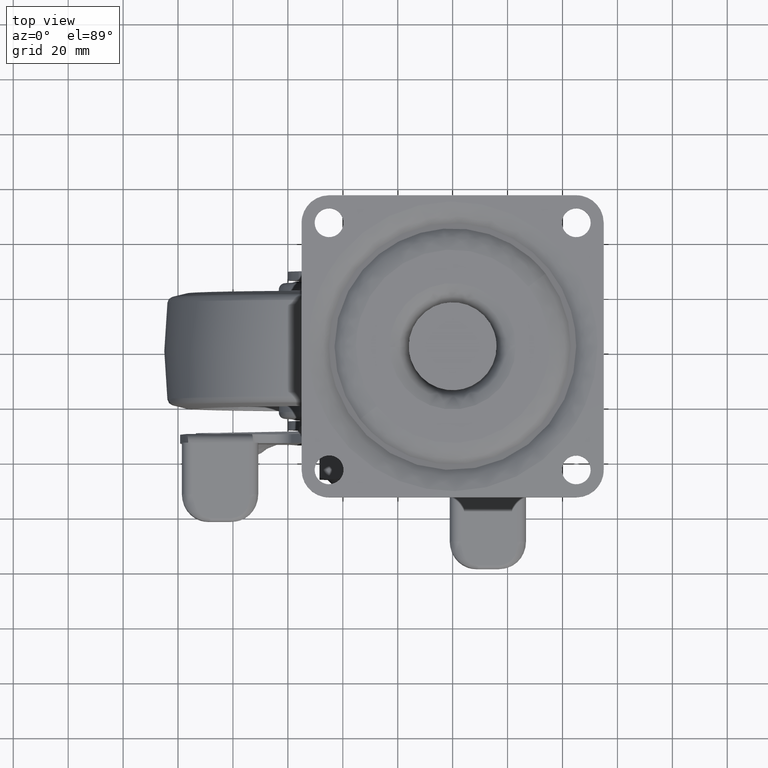
[diagram: clean part render]
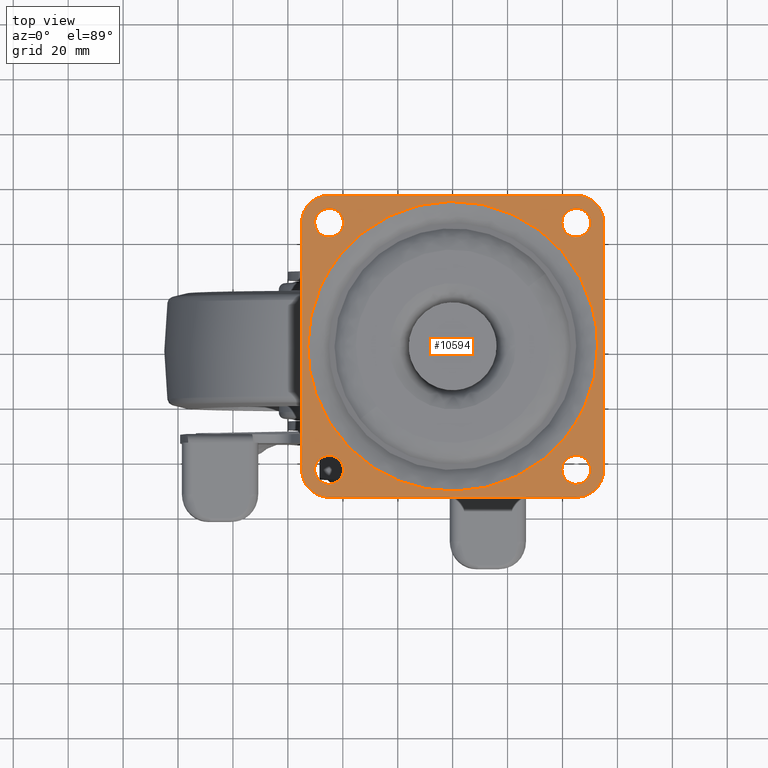
[diagram: same view with one face highlighted and labeled with its STEP entity id]
A machine part, top view. The second image highlights one B-rep face of the part: STEP entity #10594.
In plain terms, the highlighted face is a freeform B-spline surface patch.
Its self-contained STEP definition (entity closure, byte-faithful):
#9387=CARTESIAN_POINT('',(-45.320504832687227,39.759792308293100,2.081668E-016));
#9388=VERTEX_POINT('',#9387);
#9389=CARTESIAN_POINT('',(-39.750000000000000,45.0,0.0));
#9390=VERTEX_POINT('',#9389);
#9391=CARTESIAN_POINT('',(-45.320504832687206,39.759792308293108,0.0));
#9392=CARTESIAN_POINT('',(-45.160402007382380,39.750000000000000,0.0));
#9393=CARTESIAN_POINT('',(-45.0,39.750000000000000,0.0));
#9394=CARTESIAN_POINT('',(-39.750000000000000,39.750000000000000,0.0));
#9395=CARTESIAN_POINT('',(-39.750000000000000,45.0,0.0));
#9403=(BOUNDED_CURVE()B_SPLINE_CURVE(2,(#9391,#9392,#9393,#9394,#9395),.UNSPECIFIED.,.F.,.U.)B_SPLINE_CURVE_WITH_KNOTS((3,2,3),(0.239332962237713,0.250000000000000,0.500000000000000),.UNSPECIFIED.)CURVE()GEOMETRIC_REPRESENTATION_ITEM()RATIONAL_B_SPLINE_CURVE((0.976072041664082,0.987502787898397,1.0,0.707106781186547,1.0))REPRESENTATION_ITEM(''));
#9404=EDGE_CURVE('',#9388,#9390,#9403,.T.);
#9406=CARTESIAN_POINT('',(-44.679495167312773,50.240207691706892,2.081668E-016));
#9407=VERTEX_POINT('',#9406);
#9408=CARTESIAN_POINT('',(-39.750000000000000,45.0,0.0));
#9409=CARTESIAN_POINT('',(-39.750000000000007,49.938706851132871,0.0));
#9410=CARTESIAN_POINT('',(-44.679495167312758,50.240207691706885,0.0));
#9418=(BOUNDED_CURVE()B_SPLINE_CURVE(2,(#9408,#9409,#9410),.UNSPECIFIED.,.F.,.U.)B_SPLINE_CURVE_WITH_KNOTS((3,3),(0.500000000000000,0.739332962237713),.UNSPECIFIED.)CURVE()GEOMETRIC_REPRESENTATION_ITEM()RATIONAL_B_SPLINE_CURVE((1.0,0.719603993288151,0.976072041664082))REPRESENTATION_ITEM(''));
#9419=EDGE_CURVE('',#9390,#9407,#9418,.T.);
#9486=CARTESIAN_POINT('',(-50.249999999999993,45.0,0.0));
#9487=VERTEX_POINT('',#9486);
#9488=CARTESIAN_POINT('',(-50.249999999999993,45.0,0.0));
#9489=CARTESIAN_POINT('',(-50.250000000000000,40.061293148867115,0.0));
#9490=CARTESIAN_POINT('',(-45.320504832687227,39.759792308293086,0.0));
#9498=(BOUNDED_CURVE()B_SPLINE_CURVE(2,(#9488,#9489,#9490),.UNSPECIFIED.,.F.,.U.)B_SPLINE_CURVE_WITH_KNOTS((3,3),(0.0,0.239332962237713),.UNSPECIFIED.)CURVE()GEOMETRIC_REPRESENTATION_ITEM()RATIONAL_B_SPLINE_CURVE((1.0,0.719603993288151,0.976072041664082))REPRESENTATION_ITEM(''));
#9499=EDGE_CURVE('',#9487,#9388,#9498,.T.);
#9533=CARTESIAN_POINT('',(-44.679495167312780,50.240207691706885,0.0));
#9534=CARTESIAN_POINT('',(-44.839597992617620,50.250000000000000,0.0));
#9535=CARTESIAN_POINT('',(-45.0,50.249999999999993,0.0));
#9536=CARTESIAN_POINT('',(-50.249999999999986,50.249999999999986,0.0));
#9537=CARTESIAN_POINT('',(-50.249999999999993,45.0,0.0));
#9545=(BOUNDED_CURVE()B_SPLINE_CURVE(2,(#9533,#9534,#9535,#9536,#9537),.UNSPECIFIED.,.F.,.U.)B_SPLINE_CURVE_WITH_KNOTS((3,2,3),(0.739332962237713,0.750000000000000,1.0),.UNSPECIFIED.)CURVE()GEOMETRIC_REPRESENTATION_ITEM()RATIONAL_B_SPLINE_CURVE((0.976072041664082,0.987502787898397,1.0,0.707106781186547,1.0))REPRESENTATION_ITEM(''));
#9546=EDGE_CURVE('',#9407,#9487,#9545,.T.);
#9569=CARTESIAN_POINT('',(44.679495167312780,39.759792308293100,2.081668E-016));
#9570=VERTEX_POINT('',#9569);
#9571=CARTESIAN_POINT('',(50.249999999999993,45.0,0.0));
#9572=VERTEX_POINT('',#9571);
#9573=CARTESIAN_POINT('',(44.679495167312780,39.759792308293108,0.0));
#9574=CARTESIAN_POINT('',(44.839597992617612,39.750000000000000,0.0));
#9575=CARTESIAN_POINT('',(45.0,39.750000000000000,0.0));
#9576=CARTESIAN_POINT('',(50.249999999999986,39.750000000000000,0.0));
#9577=CARTESIAN_POINT('',(50.249999999999993,45.0,0.0));
#9585=(BOUNDED_CURVE()B_SPLINE_CURVE(2,(#9573,#9574,#9575,#9576,#9577),.UNSPECIFIED.,.F.,.U.)B_SPLINE_CURVE_WITH_KNOTS((3,2,3),(0.239332962237713,0.250000000000000,0.500000000000000),.UNSPECIFIED.)CURVE()GEOMETRIC_REPRESENTATION_ITEM()RATIONAL_B_SPLINE_CURVE((0.976072041664082,0.987502787898397,1.0,0.707106781186547,1.0))REPRESENTATION_ITEM(''));
#9586=EDGE_CURVE('',#9570,#9572,#9585,.T.);
#9588=CARTESIAN_POINT('',(45.320504832687220,50.240207691706892,2.081668E-016));
#9589=VERTEX_POINT('',#9588);
#9590=CARTESIAN_POINT('',(50.249999999999993,45.0,0.0));
#9591=CARTESIAN_POINT('',(50.249999999999993,49.938706851132856,0.0));
#9592=CARTESIAN_POINT('',(45.320504832687234,50.240207691706892,0.0));
#9600=(BOUNDED_CURVE()B_SPLINE_CURVE(2,(#9590,#9591,#9592),.UNSPECIFIED.,.F.,.U.)B_SPLINE_CURVE_WITH_KNOTS((3,3),(0.500000000000000,0.739332962237713),.UNSPECIFIED.)CURVE()GEOMETRIC_REPRESENTATION_ITEM()RATIONAL_B_SPLINE_CURVE((1.0,0.719603993288151,0.976072041664083))REPRESENTATION_ITEM(''));
#9601=EDGE_CURVE('',#9572,#9589,#9600,.T.);
#9668=CARTESIAN_POINT('',(39.750000000000000,45.0,0.0));
#9669=VERTEX_POINT('',#9668);
#9670=CARTESIAN_POINT('',(39.750000000000000,45.0,0.0));
#9671=CARTESIAN_POINT('',(39.750000000000000,40.061293148867115,0.0));
#9672=CARTESIAN_POINT('',(44.679495167312787,39.759792308293108,0.0));
#9680=(BOUNDED_CURVE()B_SPLINE_CURVE(2,(#9670,#9671,#9672),.UNSPECIFIED.,.F.,.U.)B_SPLINE_CURVE_WITH_KNOTS((3,3),(0.0,0.239332962237714),.UNSPECIFIED.)CURVE()GEOMETRIC_REPRESENTATION_ITEM()RATIONAL_B_SPLINE_CURVE((1.0,0.719603993288151,0.976072041664083))REPRESENTATION_ITEM(''));
#9681=EDGE_CURVE('',#9669,#9570,#9680,.T.);
#9715=CARTESIAN_POINT('',(45.320504832687234,50.240207691706892,0.0));
#9716=CARTESIAN_POINT('',(45.160402007382388,50.250000000000000,0.0));
#9717=CARTESIAN_POINT('',(45.0,50.249999999999993,0.0));
#9718=CARTESIAN_POINT('',(39.750000000000000,50.249999999999986,0.0));
#9719=CARTESIAN_POINT('',(39.750000000000000,45.0,0.0));
#9727=(BOUNDED_CURVE()B_SPLINE_CURVE(2,(#9715,#9716,#9717,#9718,#9719),.UNSPECIFIED.,.F.,.U.)B_SPLINE_CURVE_WITH_KNOTS((3,2,3),(0.739332962237713,0.750000000000000,1.0),.UNSPECIFIED.)CURVE()GEOMETRIC_REPRESENTATION_ITEM()RATIONAL_B_SPLINE_CURVE((0.976072041664083,0.987502787898397,1.0,0.707106781186547,1.0))REPRESENTATION_ITEM(''));
#9728=EDGE_CURVE('',#9589,#9669,#9727,.T.);
#9751=CARTESIAN_POINT('',(-45.320504832687220,-50.240207691706892,2.081668E-016));
#9752=VERTEX_POINT('',#9751);
#9753=CARTESIAN_POINT('',(-39.750000000000000,-45.0,0.0));
#9754=VERTEX_POINT('',#9753);
#9755=CARTESIAN_POINT('',(-45.320504832687220,-50.240207691706892,0.0));
#9756=CARTESIAN_POINT('',(-45.160402007382380,-50.249999999999993,0.0));
#9757=CARTESIAN_POINT('',(-45.0,-50.249999999999993,0.0));
#9758=CARTESIAN_POINT('',(-39.750000000000000,-50.249999999999986,0.0));
#9759=CARTESIAN_POINT('',(-39.750000000000000,-45.0,0.0));
#9767=(BOUNDED_CURVE()B_SPLINE_CURVE(2,(#9755,#9756,#9757,#9758,#9759),.UNSPECIFIED.,.F.,.U.)B_SPLINE_CURVE_WITH_KNOTS((3,2,3),(0.239332962237714,0.250000000000000,0.500000000000000),.UNSPECIFIED.)CURVE()GEOMETRIC_REPRESENTATION_ITEM()RATIONAL_B_SPLINE_CURVE((0.976072041664083,0.987502787898397,1.0,0.707106781186547,1.0))REPRESENTATION_ITEM(''));
#9768=EDGE_CURVE('',#9752,#9754,#9767,.T.);
#9770=CARTESIAN_POINT('',(-44.679495167312773,-39.759792308293100,2.081668E-016));
#9771=VERTEX_POINT('',#9770);
#9772=CARTESIAN_POINT('',(-39.750000000000000,-45.0,0.0));
#9773=CARTESIAN_POINT('',(-39.750000000000007,-40.061293148867122,0.0));
#9774=CARTESIAN_POINT('',(-44.679495167312758,-39.759792308293093,0.0));
#9782=(BOUNDED_CURVE()B_SPLINE_CURVE(2,(#9772,#9773,#9774),.UNSPECIFIED.,.F.,.U.)B_SPLINE_CURVE_WITH_KNOTS((3,3),(0.500000000000000,0.739332962237713),.UNSPECIFIED.)CURVE()GEOMETRIC_REPRESENTATION_ITEM()RATIONAL_B_SPLINE_CURVE((1.0,0.719603993288151,0.976072041664082))REPRESENTATION_ITEM(''));
#9783=EDGE_CURVE('',#9754,#9771,#9782,.T.);
#9850=CARTESIAN_POINT('',(-50.249999999999993,-45.0,0.0));
#9851=VERTEX_POINT('',#9850);
#9852=CARTESIAN_POINT('',(-50.249999999999993,-45.0,0.0));
#9853=CARTESIAN_POINT('',(-50.249999999999986,-49.938706851132864,0.0));
#9854=CARTESIAN_POINT('',(-45.320504832687220,-50.240207691706892,0.0));
#9862=(BOUNDED_CURVE()B_SPLINE_CURVE(2,(#9852,#9853,#9854),.UNSPECIFIED.,.F.,.U.)B_SPLINE_CURVE_WITH_KNOTS((3,3),(0.0,0.239332962237713),.UNSPECIFIED.)CURVE()GEOMETRIC_REPRESENTATION_ITEM()RATIONAL_B_SPLINE_CURVE((1.0,0.719603993288151,0.976072041664082))REPRESENTATION_ITEM(''));
#9863=EDGE_CURVE('',#9851,#9752,#9862,.T.);
#9897=CARTESIAN_POINT('',(-44.679495167312780,-39.759792308293108,0.0));
#9898=CARTESIAN_POINT('',(-44.839597992617620,-39.750000000000000,0.0));
#9899=CARTESIAN_POINT('',(-45.0,-39.750000000000000,0.0));
#9900=CARTESIAN_POINT('',(-50.249999999999986,-39.750000000000000,0.0));
#9901=CARTESIAN_POINT('',(-50.249999999999993,-45.0,0.0));
#9909=(BOUNDED_CURVE()B_SPLINE_CURVE(2,(#9897,#9898,#9899,#9900,#9901),.UNSPECIFIED.,.F.,.U.)B_SPLINE_CURVE_WITH_KNOTS((3,2,3),(0.739332962237713,0.750000000000000,1.0),.UNSPECIFIED.)CURVE()GEOMETRIC_REPRESENTATION_ITEM()RATIONAL_B_SPLINE_CURVE((0.976072041664082,0.987502787898397,1.0,0.707106781186547,1.0))REPRESENTATION_ITEM(''));
#9910=EDGE_CURVE('',#9771,#9851,#9909,.T.);
#9933=CARTESIAN_POINT('',(44.679495167312780,-50.240207691706892,2.081668E-016));
#9934=VERTEX_POINT('',#9933);
#9935=CARTESIAN_POINT('',(50.249999999999993,-45.0,0.0));
#9936=VERTEX_POINT('',#9935);
#9937=CARTESIAN_POINT('',(44.679495167312780,-50.240207691706878,0.0));
#9938=CARTESIAN_POINT('',(44.839597992617627,-50.249999999999986,0.0));
#9939=CARTESIAN_POINT('',(45.0,-50.249999999999993,0.0));
#9940=CARTESIAN_POINT('',(50.249999999999986,-50.249999999999986,0.0));
#9941=CARTESIAN_POINT('',(50.249999999999993,-45.0,0.0));
#9949=(BOUNDED_CURVE()B_SPLINE_CURVE(2,(#9937,#9938,#9939,#9940,#9941),.UNSPECIFIED.,.F.,.U.)B_SPLINE_CURVE_WITH_KNOTS((3,2,3),(0.239332962237714,0.250000000000000,0.500000000000000),.UNSPECIFIED.)CURVE()GEOMETRIC_REPRESENTATION_ITEM()RATIONAL_B_SPLINE_CURVE((0.976072041664083,0.987502787898397,1.0,0.707106781186547,1.0))REPRESENTATION_ITEM(''));
#9950=EDGE_CURVE('',#9934,#9936,#9949,.T.);
#9952=CARTESIAN_POINT('',(45.320504832687220,-39.759792308293100,2.081668E-016));
#9953=VERTEX_POINT('',#9952);
#9954=CARTESIAN_POINT('',(50.249999999999993,-45.0,0.0));
#9955=CARTESIAN_POINT('',(50.249999999999993,-40.061293148867108,0.0));
#9956=CARTESIAN_POINT('',(45.320504832687234,-39.759792308293108,0.0));
#9964=(BOUNDED_CURVE()B_SPLINE_CURVE(2,(#9954,#9955,#9956),.UNSPECIFIED.,.F.,.U.)B_SPLINE_CURVE_WITH_KNOTS((3,3),(0.500000000000000,0.739332962237713),.UNSPECIFIED.)CURVE()GEOMETRIC_REPRESENTATION_ITEM()RATIONAL_B_SPLINE_CURVE((1.0,0.719603993288151,0.976072041664083))REPRESENTATION_ITEM(''));
#9965=EDGE_CURVE('',#9936,#9953,#9964,.T.);
#10032=CARTESIAN_POINT('',(39.750000000000000,-45.0,0.0));
#10033=VERTEX_POINT('',#10032);
#10034=CARTESIAN_POINT('',(39.750000000000000,-45.0,0.0));
#10035=CARTESIAN_POINT('',(39.749999999999993,-49.938706851132878,0.0));
#10036=CARTESIAN_POINT('',(44.679495167312787,-50.240207691706892,0.0));
#10044=(BOUNDED_CURVE()B_SPLINE_CURVE(2,(#10034,#10035,#10036),.UNSPECIFIED.,.F.,.U.)B_SPLINE_CURVE_WITH_KNOTS((3,3),(0.0,0.239332962237714),.UNSPECIFIED.)CURVE()GEOMETRIC_REPRESENTATION_ITEM()RATIONAL_B_SPLINE_CURVE((1.0,0.719603993288150,0.976072041664083))REPRESENTATION_ITEM(''));
#10045=EDGE_CURVE('',#10033,#9934,#10044,.T.);
#10079=CARTESIAN_POINT('',(45.320504832687220,-39.759792308293100,0.0));
#10080=CARTESIAN_POINT('',(45.160402007382380,-39.749999999999993,0.0));
#10081=CARTESIAN_POINT('',(45.0,-39.750000000000000,0.0));
#10082=CARTESIAN_POINT('',(39.750000000000000,-39.750000000000000,0.0));
#10083=CARTESIAN_POINT('',(39.750000000000000,-45.0,0.0));
#10091=(BOUNDED_CURVE()B_SPLINE_CURVE(2,(#10079,#10080,#10081,#10082,#10083),.UNSPECIFIED.,.F.,.U.)B_SPLINE_CURVE_WITH_KNOTS((3,2,3),(0.739332962237714,0.750000000000000,1.0),.UNSPECIFIED.)CURVE()GEOMETRIC_REPRESENTATION_ITEM()RATIONAL_B_SPLINE_CURVE((0.976072041664083,0.987502787898397,1.0,0.707106781186547,1.0))REPRESENTATION_ITEM(''));
#10092=EDGE_CURVE('',#9953,#10033,#10091,.T.);
#10228=CARTESIAN_POINT('',(55.0,-45.0,0.0));
#10229=VERTEX_POINT('',#10228);
#10230=CARTESIAN_POINT('',(55.0,45.0,0.0));
#10231=VERTEX_POINT('',#10230);
#10232=CARTESIAN_POINT('',(55.0,-45.0,0.0));
#10233=CARTESIAN_POINT('',(55.0,45.0,0.0));
#10234=QUASI_UNIFORM_CURVE('',1,(#10232,#10233),.UNSPECIFIED.,.F.,.U.);
#10235=EDGE_CURVE('',#10229,#10231,#10234,.T.);
#10265=CARTESIAN_POINT('',(45.0,-55.0,0.0));
#10266=VERTEX_POINT('',#10265);
#10267=CARTESIAN_POINT('',(45.0,-55.0,0.0));
#10268=CARTESIAN_POINT('',(55.000000000000007,-55.000000000000007,0.0));
#10269=CARTESIAN_POINT('',(55.0,-45.0,0.0));
#10277=(BOUNDED_CURVE()B_SPLINE_CURVE(2,(#10267,#10268,#10269),.UNSPECIFIED.,.F.,.U.)CURVE()GEOMETRIC_REPRESENTATION_ITEM()QUASI_UNIFORM_CURVE()RATIONAL_B_SPLINE_CURVE((1.0,0.707106781186548,1.0))REPRESENTATION_ITEM(''));
#10278=EDGE_CURVE('',#10266,#10229,#10277,.T.);
#10295=CARTESIAN_POINT('',(-45.0,-55.0,0.0));
#10296=VERTEX_POINT('',#10295);
#10297=CARTESIAN_POINT('',(-45.0,-55.0,0.0));
#10298=CARTESIAN_POINT('',(45.0,-55.0,0.0));
#10299=QUASI_UNIFORM_CURVE('',1,(#10297,#10298),.UNSPECIFIED.,.F.,.U.);
#10300=EDGE_CURVE('',#10296,#10266,#10299,.T.);
#10326=CARTESIAN_POINT('',(-55.0,-45.0,0.0));
#10327=VERTEX_POINT('',#10326);
#10328=CARTESIAN_POINT('',(-55.0,-45.0,0.0));
#10329=CARTESIAN_POINT('',(-55.000000000000007,-55.000000000000007,0.0));
#10330=CARTESIAN_POINT('',(-45.0,-55.0,0.0));
#10338=(BOUNDED_CURVE()B_SPLINE_CURVE(2,(#10328,#10329,#10330),.UNSPECIFIED.,.F.,.U.)CURVE()GEOMETRIC_REPRESENTATION_ITEM()QUASI_UNIFORM_CURVE()RATIONAL_B_SPLINE_CURVE((1.0,0.707106781186548,1.0))REPRESENTATION_ITEM(''));
#10339=EDGE_CURVE('',#10327,#10296,#10338,.T.);
#10356=CARTESIAN_POINT('',(-55.0,45.0,0.0));
#10357=VERTEX_POINT('',#10356);
#10358=CARTESIAN_POINT('',(-55.0,45.0,0.0));
#10359=CARTESIAN_POINT('',(-55.0,-45.0,0.0));
#10360=QUASI_UNIFORM_CURVE('',1,(#10358,#10359),.UNSPECIFIED.,.F.,.U.);
#10361=EDGE_CURVE('',#10357,#10327,#10360,.T.);
#10387=CARTESIAN_POINT('',(-45.0,55.0,0.0));
#10388=VERTEX_POINT('',#10387);
#10389=CARTESIAN_POINT('',(-45.0,55.0,0.0));
#10390=CARTESIAN_POINT('',(-55.000000000000007,55.000000000000007,0.0));
#10391=CARTESIAN_POINT('',(-55.0,45.0,0.0));
#10399=(BOUNDED_CURVE()B_SPLINE_CURVE(2,(#10389,#10390,#10391),.UNSPECIFIED.,.F.,.U.)CURVE()GEOMETRIC_REPRESENTATION_ITEM()QUASI_UNIFORM_CURVE()RATIONAL_B_SPLINE_CURVE((1.0,0.707106781186548,1.0))REPRESENTATION_ITEM(''));
#10400=EDGE_CURVE('',#10388,#10357,#10399,.T.);
#10417=CARTESIAN_POINT('',(45.0,55.0,0.0));
#10418=VERTEX_POINT('',#10417);
#10419=CARTESIAN_POINT('',(45.0,55.0,0.0));
#10420=CARTESIAN_POINT('',(-45.0,55.0,0.0));
#10421=QUASI_UNIFORM_CURVE('',1,(#10419,#10420),.UNSPECIFIED.,.F.,.U.);
#10422=EDGE_CURVE('',#10418,#10388,#10421,.T.);
#10448=CARTESIAN_POINT('',(55.0,45.0,0.0));
#10449=CARTESIAN_POINT('',(55.000000000000007,55.000000000000007,0.0));
#10450=CARTESIAN_POINT('',(45.0,55.0,0.0));
#10458=(BOUNDED_CURVE()B_SPLINE_CURVE(2,(#10448,#10449,#10450),.UNSPECIFIED.,.F.,.U.)CURVE()GEOMETRIC_REPRESENTATION_ITEM()QUASI_UNIFORM_CURVE()RATIONAL_B_SPLINE_CURVE((1.0,0.707106781186548,1.0))REPRESENTATION_ITEM(''));
#10459=EDGE_CURVE('',#10231,#10418,#10458,.T.);
#10467=CARTESIAN_POINT('',(-60.494499786798663,60.494499786798663,0.0));
#10468=CARTESIAN_POINT('',(60.494502737228572,60.494499786798663,0.0));
#10469=CARTESIAN_POINT('',(-60.494499786798663,-60.494502737228572,0.0));
#10470=CARTESIAN_POINT('',(60.494502737228572,-60.494502737228572,0.0));
#10471=B_SPLINE_SURFACE_WITH_KNOTS('',1,1,((#10467,#10469),(#10468,#10470)),.UNSPECIFIED.,.F.,.F.,.U.,(2,2),(2,2),(0.0,120.989002524027200),(0.0,120.989002524027200),.UNSPECIFIED.);
#10472=ORIENTED_EDGE('',*,*,#10459,.T.);
#10473=ORIENTED_EDGE('',*,*,#10422,.T.);
#10474=ORIENTED_EDGE('',*,*,#10400,.T.);
#10475=ORIENTED_EDGE('',*,*,#10361,.T.);
#10476=ORIENTED_EDGE('',*,*,#10339,.T.);
#10477=ORIENTED_EDGE('',*,*,#10300,.T.);
#10478=ORIENTED_EDGE('',*,*,#10278,.T.);
#10479=ORIENTED_EDGE('',*,*,#10235,.T.);
#10480=EDGE_LOOP('',(#10472,#10473,#10474,#10475,#10476,#10477,#10478,#10479));
#10481=FACE_OUTER_BOUND('',#10480,.T.);
#10482=CARTESIAN_POINT('',(-52.765951326141597,0.0,0.0));
#10483=VERTEX_POINT('',#10482);
#10484=CARTESIAN_POINT('',(-41.076308764218211,33.120733297257402,-2.215371E-012));
#10485=VERTEX_POINT('',#10484);
#10486=CARTESIAN_POINT('',(-52.765951326141597,0.0,0.0));
#10487=CARTESIAN_POINT('',(-52.765953157330664,18.623241280758467,-1.107686E-012));
#10488=CARTESIAN_POINT('',(-41.076308764218211,33.120733297257402,-2.215371E-012));
#10496=(BOUNDED_CURVE()B_SPLINE_CURVE(2,(#10486,#10487,#10488),.UNSPECIFIED.,.F.,.U.)B_SPLINE_CURVE_WITH_KNOTS((3,3),(0.0,0.108867642835371),.UNSPECIFIED.)CURVE()GEOMETRIC_REPRESENTATION_ITEM()RATIONAL_B_SPLINE_CURVE((1.0,0.872453622661260,0.855992632946995))REPRESENTATION_ITEM(''));
#10497=EDGE_CURVE('',#10483,#10485,#10496,.T.);
#10498=ORIENTED_EDGE('',*,*,#10497,.T.);
#10499=CARTESIAN_POINT('',(52.765951326141597,0.0,0.0));
#10500=VERTEX_POINT('',#10499);
#10501=CARTESIAN_POINT('',(-41.076308764218211,33.120733297257402,-2.215371E-012));
#10502=CARTESIAN_POINT('',(-39.854806380678042,34.635686296616768,-2.200953E-012));
#10503=CARTESIAN_POINT('',(-36.960164387595519,37.844889394415873,-2.163965E-012));
#10504=CARTESIAN_POINT('',(-31.385529091637590,42.677796694443302,-2.082747E-012));
#10505=CARTESIAN_POINT('',(-24.550904559300658,46.965552448757187,-1.971040E-012));
#10506=CARTESIAN_POINT('',(-17.749325756447430,49.833975197426533,-1.849511E-012));
#10507=CARTESIAN_POINT('',(-11.800326468800140,51.521750782340703,-1.737132E-012));
#10508=CARTESIAN_POINT('',(-6.043732796508593,52.542229528020897,-1.623848E-012));
#10509=CARTESIAN_POINT('',(0.812818566070118,52.937574711432930,-1.482841E-012));
#10510=CARTESIAN_POINT('',(7.408498425014450,52.380017287949528,-1.340251E-012));
#10511=CARTESIAN_POINT('',(14.371410388262090,50.917719890170162,-1.183248E-012));
#10512=CARTESIAN_POINT('',(20.790737534488208,48.704159756504872,-1.032090E-012));
#10513=CARTESIAN_POINT('',(26.887325780959252,45.539294236341632,-8.806595E-013));
#10514=CARTESIAN_POINT('',(32.502406354033631,41.745142633285177,-7.346741E-013));
#10515=CARTESIAN_POINT('',(37.162532795471442,37.663428231627023,-6.066050E-013));
#10516=CARTESIAN_POINT('',(41.595683128888027,32.649291625390092,-4.763923E-013));
#10517=CARTESIAN_POINT('',(44.610817027853528,28.343908982610930,-3.811984E-013));
#10518=CARTESIAN_POINT('',(47.350098115988281,23.473356090239459,-2.876079E-013));
#10519=CARTESIAN_POINT('',(49.200253157651893,19.286647234779590,-2.177490E-013));
#10520=CARTESIAN_POINT('',(51.077494772209612,13.665646832319000,-1.366947E-013));
#10521=CARTESIAN_POINT('',(52.411272459819607,7.530334648172240,-6.323841E-014));
#10522=CARTESIAN_POINT('',(52.766039492797127,2.453693296909075,-1.817776E-014));
#10523=CARTESIAN_POINT('',(52.765951326141597,0.0,0.0));
#10524=B_SPLINE_CURVE_WITH_KNOTS('',3,(#10501,#10502,#10503,#10504,#10505,#10506,#10507,#10508,#10509,#10510,#10511,#10512,#10513,#10514,#10515,#10516,#10517,#10518,#10519,#10520,#10521,#10522,#10523),.UNSPECIFIED.,.F.,.U.,(4,1,1,1,1,1,1,1,1,1,1,1,1,1,1,1,1,1,1,1,4),(0.000000190578248,5.838189182734837,12.945575586546950,22.083589315223179,29.952470425085959,35.029158527358561,40.613485698377723,47.466988938706379,55.589576465084761,60.412444235650128,68.789051460695845,75.896388122518857,80.973111309151435,89.095818745975834,94.426352349204876,101.026028258143400,104.833600326480610,111.179476188624510,114.733156889100400,122.602042878433810,129.963124877159000),.UNSPECIFIED.);
#10525=EDGE_CURVE('',#10485,#10500,#10524,.T.);
#10526=ORIENTED_EDGE('',*,*,#10525,.T.);
#10527=CARTESIAN_POINT('',(41.076308764218219,-33.120733297257402,-2.215371E-012));
#10528=VERTEX_POINT('',#10527);
#10529=CARTESIAN_POINT('',(52.765951326141597,0.0,0.0));
#10530=CARTESIAN_POINT('',(52.765953157330664,-18.623241280758467,-1.107686E-012));
#10531=CARTESIAN_POINT('',(41.076308764218211,-33.120733297257409,-2.215371E-012));
#10539=(BOUNDED_CURVE()B_SPLINE_CURVE(2,(#10529,#10530,#10531),.UNSPECIFIED.,.F.,.U.)B_SPLINE_CURVE_WITH_KNOTS((3,3),(0.500000000000000,0.608867642835371),.UNSPECIFIED.)CURVE()GEOMETRIC_REPRESENTATION_ITEM()RATIONAL_B_SPLINE_CURVE((1.0,0.872453622661260,0.855992632946995))REPRESENTATION_ITEM(''));
#10540=EDGE_CURVE('',#10500,#10528,#10539,.T.);
#10541=ORIENTED_EDGE('',*,*,#10540,.T.);
#10542=CARTESIAN_POINT('',(41.076308764218219,-33.120733297257402,-2.215371E-012));
#10543=CARTESIAN_POINT('',(39.005297139517957,-35.689796420024031,-2.190930E-012));
#10544=CARTESIAN_POINT('',(35.268587575388302,-39.524094695857102,-2.140896E-012));
#10545=CARTESIAN_POINT('',(28.640825105575420,-44.529971478800540,-2.038852E-012));
#10546=CARTESIAN_POINT('',(22.547161626240420,-47.898453554334793,-1.935889E-012));
#10547=CARTESIAN_POINT('',(16.532001800374839,-50.199801087687362,-1.826667E-012));
#10548=CARTESIAN_POINT('',(11.058526724449671,-51.696067344258147,-1.722851E-012));
#10549=CARTESIAN_POINT('',(4.949930597583372,-52.688280248515753,-1.601968E-012));
#10550=CARTESIAN_POINT('',(-1.154336081751453,-52.863557229079490,-1.475124E-012));
#10551=CARTESIAN_POINT('',(-7.062134260540723,-52.378434110266262,-1.347510E-012));
#10552=CARTESIAN_POINT('',(-12.064627090859160,-51.465309543544592,-1.235730E-012));
#10553=CARTESIAN_POINT('',(-18.488063338209969,-49.590831016672702,-1.086999E-012));
#10554=CARTESIAN_POINT('',(-24.391462219733299,-46.980948893746131,-9.437351E-013));
#10555=CARTESIAN_POINT('',(-30.589983752786200,-43.151675889816083,-7.852416E-013));
#10556=CARTESIAN_POINT('',(-35.097724343069594,-39.553757028402757,-6.639559E-013));
#10557=CARTESIAN_POINT('',(-39.403954262772857,-35.236459160754272,-5.415705E-013));
#10558=CARTESIAN_POINT('',(-42.657996408375091,-31.218176610652250,-4.434885E-013));
#10559=CARTESIAN_POINT('',(-45.662203106326587,-26.605284559359980,-3.462456E-013));
#10560=CARTESIAN_POINT('',(-48.249841468280401,-21.647796506431739,-2.551944E-013));
#10561=CARTESIAN_POINT('',(-50.492720146587480,-15.788940517769110,-1.647022E-013));
#10562=CARTESIAN_POINT('',(-52.290068061646757,-8.460997705980848,-7.267815E-014));
#10563=CARTESIAN_POINT('',(-52.766278342034937,-3.130637654234845,-2.318828E-014));
#10564=CARTESIAN_POINT('',(-52.765951326141597,0.0,0.0));
#10565=B_SPLINE_CURVE_WITH_KNOTS('',3,(#10542,#10543,#10544,#10545,#10546,#10547,#10548,#10549,#10550,#10551,#10552,#10553,#10554,#10555,#10556,#10557,#10558,#10559,#10560,#10561,#10562,#10563,#10564),.UNSPECIFIED.,.F.,.U.,(4,1,1,1,1,1,1,1,1,1,1,1,1,1,1,1,1,1,1,1,4),(0.000000190560655,9.899542198991540,15.991562866545200,24.875763769863720,30.713985321284039,35.283032649909117,41.882761192845827,49.243693513975103,53.558907749809279,59.650934717040499,64.473803755579269,73.611910829779731,78.942441468123008,86.303638320726705,90.872660186406705,97.218544380878853,101.787549587656500,107.371920283814010,113.971649423808500,120.571278928486090,129.963124877159000),.UNSPECIFIED.);
#10566=EDGE_CURVE('',#10528,#10483,#10565,.T.);
#10567=ORIENTED_EDGE('',*,*,#10566,.T.);
#10568=EDGE_LOOP('',(#10498,#10526,#10541,#10567));
#10569=FACE_BOUND('',#10568,.T.);
#10570=ORIENTED_EDGE('',*,*,#9965,.F.);
#10571=ORIENTED_EDGE('',*,*,#9950,.F.);
#10572=ORIENTED_EDGE('',*,*,#10045,.F.);
#10573=ORIENTED_EDGE('',*,*,#10092,.F.);
#10574=EDGE_LOOP('',(#10570,#10571,#10572,#10573));
#10575=FACE_BOUND('',#10574,.T.);
#10576=ORIENTED_EDGE('',*,*,#9783,.F.);
#10577=ORIENTED_EDGE('',*,*,#9768,.F.);
#10578=ORIENTED_EDGE('',*,*,#9863,.F.);
#10579=ORIENTED_EDGE('',*,*,#9910,.F.);
#10580=EDGE_LOOP('',(#10576,#10577,#10578,#10579));
#10581=FACE_BOUND('',#10580,.T.);
#10582=ORIENTED_EDGE('',*,*,#9601,.F.);
#10583=ORIENTED_EDGE('',*,*,#9586,.F.);
#10584=ORIENTED_EDGE('',*,*,#9681,.F.);
#10585=ORIENTED_EDGE('',*,*,#9728,.F.);
#10586=EDGE_LOOP('',(#10582,#10583,#10584,#10585));
#10587=FACE_BOUND('',#10586,.T.);
#10588=ORIENTED_EDGE('',*,*,#9419,.F.);
#10589=ORIENTED_EDGE('',*,*,#9404,.F.);
#10590=ORIENTED_EDGE('',*,*,#9499,.F.);
#10591=ORIENTED_EDGE('',*,*,#9546,.F.);
#10592=EDGE_LOOP('',(#10588,#10589,#10590,#10591));
#10593=FACE_BOUND('',#10592,.T.);
#10594=ADVANCED_FACE('',(#10481,#10569,#10575,#10581,#10587,#10593),#10471,.F.);